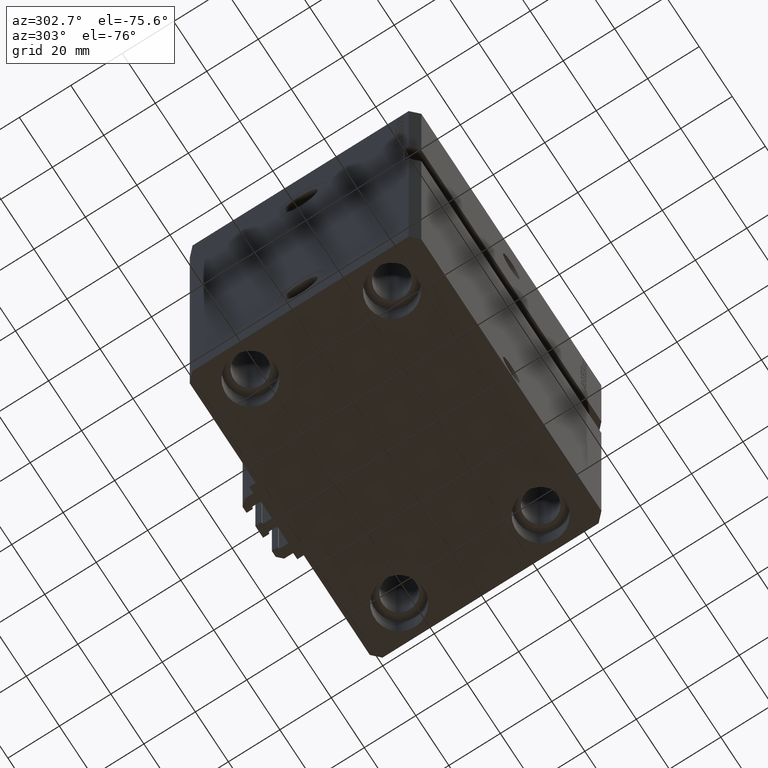
[diagram: clean part render]
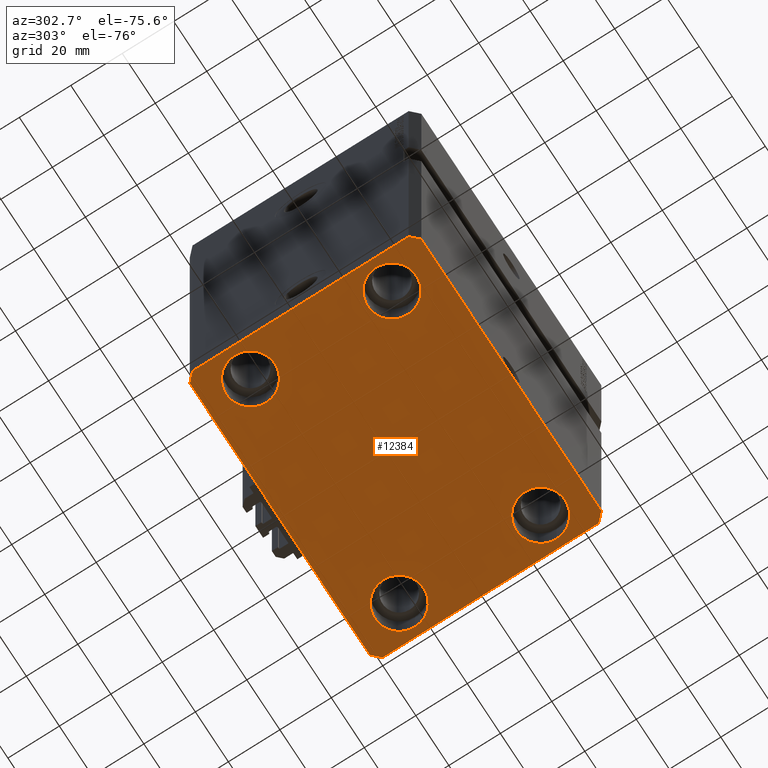
[diagram: same view with one face highlighted and labeled with its STEP entity id]
A machine part, auxiliary view. The second image highlights one B-rep face of the part: STEP entity #12384.
In plain terms, the highlighted planar face has unit normal (0, 0, 1).
Its self-contained STEP definition (entity closure, byte-faithful):
#304 = DIRECTION ( 'NONE',  ( 1.000000000000000000, 0.000000000000000000, 0.000000000000000000 ) ) ;
#932 = CARTESIAN_POINT ( 'NONE',  ( 45.00000000000000000, 27.50000000000001776, -165.0000000000000000 ) ) ;
#956 = DIRECTION ( 'NONE',  ( -0.000000000000000000, -0.000000000000000000, 1.000000000000000000 ) ) ;
#2150 = DIRECTION ( 'NONE',  ( 1.000000000000000000, 0.000000000000000000, 0.000000000000000000 ) ) ;
#2171 = EDGE_LOOP ( 'NONE', ( #38454, #23163 ) ) ;
#2293 = CIRCLE ( 'NONE', #6225, 9.500000000000001776 ) ;
#2700 = EDGE_CURVE ( 'NONE', #20136, #25720, #9491, .T. ) ;
#2764 = CARTESIAN_POINT ( 'NONE',  ( -54.49999999999999289, 45.00000000000000000, -165.0000000000000000 ) ) ;
#3582 = CARTESIAN_POINT ( 'NONE',  ( 57.50000000000000711, -41.99999999999998579, -165.0000000000000000 ) ) ;
#3643 = DIRECTION ( 'NONE',  ( 1.000000000000000000, 0.000000000000000000, 0.000000000000000000 ) ) ;
#3996 = DIRECTION ( 'NONE',  ( -0.000000000000000000, -0.000000000000000000, 1.000000000000000000 ) ) ;
#4161 = CIRCLE ( 'NONE', #11201, 9.500000000000001776 ) ;
#4322 = CARTESIAN_POINT ( 'NONE',  ( 54.50000000000058975, 45.00000000000002842, -165.0000000000000000 ) ) ;
#4656 = VERTEX_POINT ( 'NONE', #32505 ) ;
#5086 = DIRECTION ( 'NONE',  ( 0.7071067811865483499, 0.7071067811865466846, 0.000000000000000000 ) ) ;
#5534 = ORIENTED_EDGE ( 'NONE', *, *, #17664, .T. ) ;
#5728 = ORIENTED_EDGE ( 'NONE', *, *, #47045, .T. ) ;
#6145 = EDGE_CURVE ( 'NONE', #42793, #4656, #9736, .T. ) ;
#6225 = AXIS2_PLACEMENT_3D ( 'NONE', #35613, #42979, #19668 ) ;
#6329 = CIRCLE ( 'NONE', #30676, 9.500000000000001776 ) ;
#7003 = CARTESIAN_POINT ( 'NONE',  ( 54.50000000000000000, -27.49999999999999645, -165.0000000000000000 ) ) ;
#7126 = PLANE ( 'NONE',  #34010 ) ;
#7158 = DIRECTION ( 'NONE',  ( 0.7071067811865491270, -0.7071067811865459074, 0.000000000000000000 ) ) ;
#7210 = EDGE_CURVE ( 'NONE', #12073, #37264, #24667, .T. ) ;
#7295 = DIRECTION ( 'NONE',  ( 1.000000000000000000, 1.273191542001326317E-16, 0.000000000000000000 ) ) ;
#8092 = EDGE_CURVE ( 'NONE', #16268, #33683, #17753, .T. ) ;
#8514 = VERTEX_POINT ( 'NONE', #33182 ) ;
#8765 = CARTESIAN_POINT ( 'NONE',  ( 35.50000000000000000, 27.50000000000001776, -165.0000000000000000 ) ) ;
#8847 = EDGE_CURVE ( 'NONE', #4656, #33036, #18066, .T. ) ;
#8910 = VECTOR ( 'NONE', #28809, 999.9999999999998863 ) ;
#9342 = VERTEX_POINT ( 'NONE', #16472 ) ;
#9491 = CIRCLE ( 'NONE', #15806, 9.500000000000001776 ) ;
#9736 = LINE ( 'NONE', #21572, #13583 ) ;
#10357 = CARTESIAN_POINT ( 'NONE',  ( -54.50000000000000711, -45.00000000000000000, -165.0000000000000000 ) ) ;
#10797 = FACE_BOUND ( 'NONE', #2171, .T. ) ;
#11201 = AXIS2_PLACEMENT_3D ( 'NONE', #37256, #36083, #2150 ) ;
#11233 = VECTOR ( 'NONE', #7158, 1000.000000000000114 ) ;
#11706 = EDGE_LOOP ( 'NONE', ( #32437, #42201 ) ) ;
#12073 = VERTEX_POINT ( 'NONE', #13885 ) ;
#12085 = VERTEX_POINT ( 'NONE', #7003 ) ;
#12361 = CARTESIAN_POINT ( 'NONE',  ( -35.50000000000000000, -27.49999999999999645, -165.0000000000000000 ) ) ;
#12384 = ADVANCED_FACE ( 'NONE', ( #10797, #29267, #25836, #40818, #22866 ), #7126, .F. ) ;
#13324 = LINE ( 'NONE', #2764, #28452 ) ;
#13583 = VECTOR ( 'NONE', #7295, 1000.000000000000000 ) ;
#13681 = VECTOR ( 'NONE', #5086, 1000.000000000000000 ) ;
#13834 = CARTESIAN_POINT ( 'NONE',  ( -35.50000000000000000, 27.50000000000000355, -165.0000000000000000 ) ) ;
#13885 = CARTESIAN_POINT ( 'NONE',  ( -54.50000000000000000, -27.49999999999999645, -165.0000000000000000 ) ) ;
#13986 = ORIENTED_EDGE ( 'NONE', *, *, #27617, .F. ) ;
#14008 = AXIS2_PLACEMENT_3D ( 'NONE', #31129, #46116, #17085 ) ;
#15135 = LINE ( 'NONE', #3582, #45595 ) ;
#15806 = AXIS2_PLACEMENT_3D ( 'NONE', #932, #30709, #38314 ) ;
#16040 = DIRECTION ( 'NONE',  ( 1.000000000000000000, 0.000000000000000000, 0.000000000000000000 ) ) ;
#16268 = VERTEX_POINT ( 'NONE', #44563 ) ;
#16434 = ORIENTED_EDGE ( 'NONE', *, *, #32571, .F. ) ;
#16472 = CARTESIAN_POINT ( 'NONE',  ( -57.49999999999998579, 42.00000000000000711, -165.0000000000000000 ) ) ;
#17085 = DIRECTION ( 'NONE',  ( 1.000000000000000000, 0.000000000000000000, 0.000000000000000000 ) ) ;
#17218 = ORIENTED_EDGE ( 'NONE', *, *, #18597, .F. ) ;
#17664 = EDGE_CURVE ( 'NONE', #34728, #35297, #40504, .T. ) ;
#17753 = LINE ( 'NONE', #47496, #8910 ) ;
#18066 = LINE ( 'NONE', #35331, #13681 ) ;
#18206 = CARTESIAN_POINT ( 'NONE',  ( 0.000000000000000000, 0.000000000000000000, -165.0000000000000000 ) ) ;
#18596 = DIRECTION ( 'NONE',  ( 6.443258625056715108E-15, 1.000000000000000000, 0.000000000000000000 ) ) ;
#18597 = EDGE_CURVE ( 'NONE', #33683, #8514, #23721, .T. ) ;
#18654 = CARTESIAN_POINT ( 'NONE',  ( 45.00000000000000000, -27.49999999999999645, -165.0000000000000000 ) ) ;
#19513 = ORIENTED_EDGE ( 'NONE', *, *, #37282, .F. ) ;
#19668 = DIRECTION ( 'NONE',  ( 1.000000000000000000, 0.000000000000000000, 0.000000000000000000 ) ) ;
#20136 = VERTEX_POINT ( 'NONE', #8765 ) ;
#20500 = CARTESIAN_POINT ( 'NONE',  ( 54.50000000000058975, 45.00000000000002842, -165.0000000000000000 ) ) ;
#21572 = CARTESIAN_POINT ( 'NONE',  ( -54.50000000000000711, -45.00000000000000000, -165.0000000000000000 ) ) ;
#21841 = EDGE_LOOP ( 'NONE', ( #23546, #5728 ) ) ;
#22144 = CARTESIAN_POINT ( 'NONE',  ( -57.50000000000000711, -42.00000000000000711, -165.0000000000000000 ) ) ;
#22349 = DIRECTION ( 'NONE',  ( -0.000000000000000000, -0.000000000000000000, 1.000000000000000000 ) ) ;
#22512 = EDGE_LOOP ( 'NONE', ( #28963, #5534 ) ) ;
#22866 = FACE_OUTER_BOUND ( 'NONE', #45408, .T. ) ;
#22985 = LINE ( 'NONE', #37974, #46253 ) ;
#23163 = ORIENTED_EDGE ( 'NONE', *, *, #37951, .T. ) ;
#23193 = DIRECTION ( 'NONE',  ( -0.000000000000000000, -0.000000000000000000, 1.000000000000000000 ) ) ;
#23247 = AXIS2_PLACEMENT_3D ( 'NONE', #28908, #956, #45968 ) ;
#23546 = ORIENTED_EDGE ( 'NONE', *, *, #2700, .T. ) ;
#23721 = LINE ( 'NONE', #20500, #46812 ) ;
#24667 = CIRCLE ( 'NONE', #38751, 9.500000000000001776 ) ;
#25166 = VERTEX_POINT ( 'NONE', #36173 ) ;
#25205 = CARTESIAN_POINT ( 'NONE',  ( 57.50000000000000711, -41.99999999999998579, -165.0000000000000000 ) ) ;
#25720 = VERTEX_POINT ( 'NONE', #41925 ) ;
#25836 = FACE_BOUND ( 'NONE', #21841, .T. ) ;
#26354 = CARTESIAN_POINT ( 'NONE',  ( -54.50000000000000000, 27.50000000000000355, -165.0000000000000000 ) ) ;
#27617 = EDGE_CURVE ( 'NONE', #9342, #28161, #22985, .T. ) ;
#27923 = ORIENTED_EDGE ( 'NONE', *, *, #8092, .F. ) ;
#28160 = CIRCLE ( 'NONE', #14008, 9.500000000000001776 ) ;
#28161 = VERTEX_POINT ( 'NONE', #22144 ) ;
#28275 = ORIENTED_EDGE ( 'NONE', *, *, #8847, .F. ) ;
#28452 = VECTOR ( 'NONE', #44058, 1000.000000000000000 ) ;
#28809 = DIRECTION ( 'NONE',  ( -0.7071067811865376918, 0.7071067811865574537, 0.000000000000000000 ) ) ;
#28908 = CARTESIAN_POINT ( 'NONE',  ( -45.00000000000000000, 27.50000000000000355, -165.0000000000000000 ) ) ;
#28963 = ORIENTED_EDGE ( 'NONE', *, *, #29033, .T. ) ;
#29033 = EDGE_CURVE ( 'NONE', #35297, #34728, #2293, .T. ) ;
#29267 = FACE_BOUND ( 'NONE', #11706, .T. ) ;
#30676 = AXIS2_PLACEMENT_3D ( 'NONE', #18654, #22349, #3643 ) ;
#30709 = DIRECTION ( 'NONE',  ( -0.000000000000000000, -0.000000000000000000, 1.000000000000000000 ) ) ;
#31129 = CARTESIAN_POINT ( 'NONE',  ( 45.00000000000000000, -27.49999999999999645, -165.0000000000000000 ) ) ;
#31338 = ORIENTED_EDGE ( 'NONE', *, *, #6145, .F. ) ;
#32124 = EDGE_CURVE ( 'NONE', #12085, #25166, #6329, .T. ) ;
#32437 = ORIENTED_EDGE ( 'NONE', *, *, #40554, .T. ) ;
#32505 = CARTESIAN_POINT ( 'NONE',  ( 54.50000000000000711, -44.99999999999998579, -165.0000000000000000 ) ) ;
#32571 = EDGE_CURVE ( 'NONE', #33036, #16268, #15135, .T. ) ;
#32990 = LINE ( 'NONE', #40353, #11233 ) ;
#33036 = VERTEX_POINT ( 'NONE', #25205 ) ;
#33182 = CARTESIAN_POINT ( 'NONE',  ( -54.49999999999999289, 45.00000000000000000, -165.0000000000000000 ) ) ;
#33458 = DIRECTION ( 'NONE',  ( 0.000000000000000000, 0.000000000000000000, 1.000000000000000000 ) ) ;
#33683 = VERTEX_POINT ( 'NONE', #4322 ) ;
#33916 = ORIENTED_EDGE ( 'NONE', *, *, #38882, .F. ) ;
#34010 = AXIS2_PLACEMENT_3D ( 'NONE', #18206, #33458, #40572 ) ;
#34728 = VERTEX_POINT ( 'NONE', #13834 ) ;
#35297 = VERTEX_POINT ( 'NONE', #26354 ) ;
#35331 = CARTESIAN_POINT ( 'NONE',  ( 54.50000000000000711, -44.99999999999998579, -165.0000000000000000 ) ) ;
#35613 = CARTESIAN_POINT ( 'NONE',  ( -45.00000000000000000, 27.50000000000000355, -165.0000000000000000 ) ) ;
#36083 = DIRECTION ( 'NONE',  ( -0.000000000000000000, -0.000000000000000000, 1.000000000000000000 ) ) ;
#36173 = CARTESIAN_POINT ( 'NONE',  ( 35.50000000000000000, -27.49999999999999645, -165.0000000000000000 ) ) ;
#37256 = CARTESIAN_POINT ( 'NONE',  ( -45.00000000000000000, -27.49999999999999645, -165.0000000000000000 ) ) ;
#37264 = VERTEX_POINT ( 'NONE', #12361 ) ;
#37282 = EDGE_CURVE ( 'NONE', #8514, #9342, #13324, .T. ) ;
#37692 = CARTESIAN_POINT ( 'NONE',  ( 45.00000000000000000, 27.50000000000001776, -165.0000000000000000 ) ) ;
#37951 = EDGE_CURVE ( 'NONE', #37264, #12073, #4161, .T. ) ;
#37974 = CARTESIAN_POINT ( 'NONE',  ( -57.49999999999998579, 42.00000000000000711, -165.0000000000000000 ) ) ;
#38314 = DIRECTION ( 'NONE',  ( 1.000000000000000000, 0.000000000000000000, 0.000000000000000000 ) ) ;
#38454 = ORIENTED_EDGE ( 'NONE', *, *, #7210, .T. ) ;
#38751 = AXIS2_PLACEMENT_3D ( 'NONE', #40651, #23193, #16040 ) ;
#38882 = EDGE_CURVE ( 'NONE', #28161, #42793, #32990, .T. ) ;
#39352 = AXIS2_PLACEMENT_3D ( 'NONE', #37692, #3996, #304 ) ;
#40160 = CIRCLE ( 'NONE', #39352, 9.500000000000001776 ) ;
#40353 = CARTESIAN_POINT ( 'NONE',  ( -57.50000000000000711, -42.00000000000000711, -165.0000000000000000 ) ) ;
#40504 = CIRCLE ( 'NONE', #23247, 9.500000000000001776 ) ;
#40554 = EDGE_CURVE ( 'NONE', #25166, #12085, #28160, .T. ) ;
#40572 = DIRECTION ( 'NONE',  ( 1.000000000000000000, 0.000000000000000000, -0.000000000000000000 ) ) ;
#40651 = CARTESIAN_POINT ( 'NONE',  ( -45.00000000000000000, -27.49999999999999645, -165.0000000000000000 ) ) ;
#40818 = FACE_BOUND ( 'NONE', #22512, .T. ) ;
#41182 = DIRECTION ( 'NONE',  ( -2.478176394252581141E-16, -1.000000000000000000, 0.000000000000000000 ) ) ;
#41904 = DIRECTION ( 'NONE',  ( -1.000000000000000000, -2.546383084002639322E-16, 0.000000000000000000 ) ) ;
#41925 = CARTESIAN_POINT ( 'NONE',  ( 54.50000000000000000, 27.50000000000001776, -165.0000000000000000 ) ) ;
#42201 = ORIENTED_EDGE ( 'NONE', *, *, #32124, .T. ) ;
#42793 = VERTEX_POINT ( 'NONE', #10357 ) ;
#42979 = DIRECTION ( 'NONE',  ( -0.000000000000000000, -0.000000000000000000, 1.000000000000000000 ) ) ;
#44058 = DIRECTION ( 'NONE',  ( -0.7071067811865483499, -0.7071067811865466846, 0.000000000000000000 ) ) ;
#44563 = CARTESIAN_POINT ( 'NONE',  ( 57.50000000000055422, 41.99999999999997868, -165.0000000000000000 ) ) ;
#45408 = EDGE_LOOP ( 'NONE', ( #17218, #27923, #16434, #28275, #31338, #33916, #13986, #19513 ) ) ;
#45595 = VECTOR ( 'NONE', #18596, 1000.000000000000000 ) ;
#45968 = DIRECTION ( 'NONE',  ( 1.000000000000000000, 0.000000000000000000, 0.000000000000000000 ) ) ;
#46116 = DIRECTION ( 'NONE',  ( -0.000000000000000000, -0.000000000000000000, 1.000000000000000000 ) ) ;
#46253 = VECTOR ( 'NONE', #41182, 1000.000000000000000 ) ;
#46812 = VECTOR ( 'NONE', #41904, 1000.000000000000000 ) ;
#47045 = EDGE_CURVE ( 'NONE', #25720, #20136, #40160, .T. ) ;
#47496 = CARTESIAN_POINT ( 'NONE',  ( 57.50000000000055422, 41.99999999999997868, -165.0000000000000000 ) ) ;